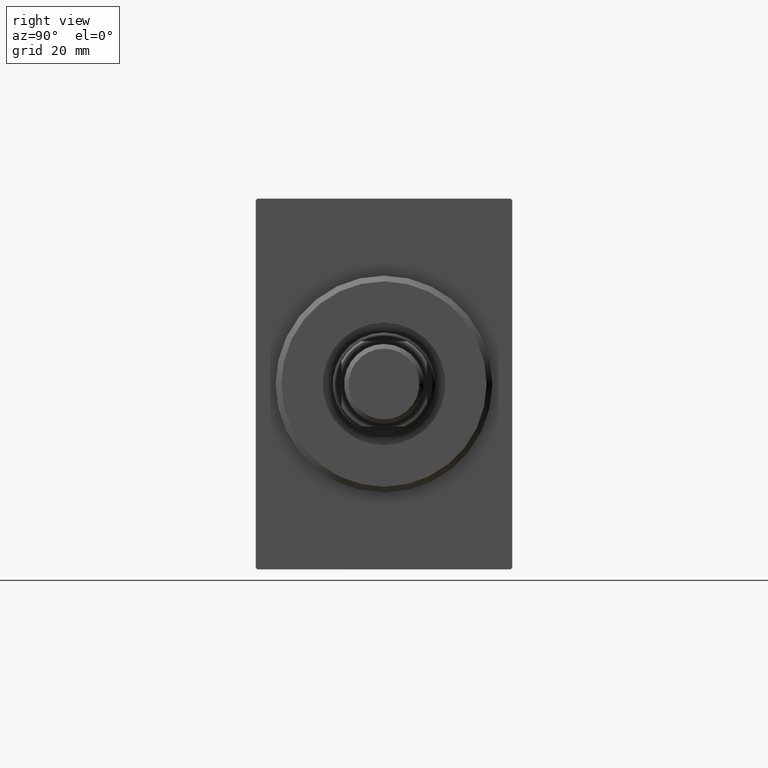
[diagram: clean part render]
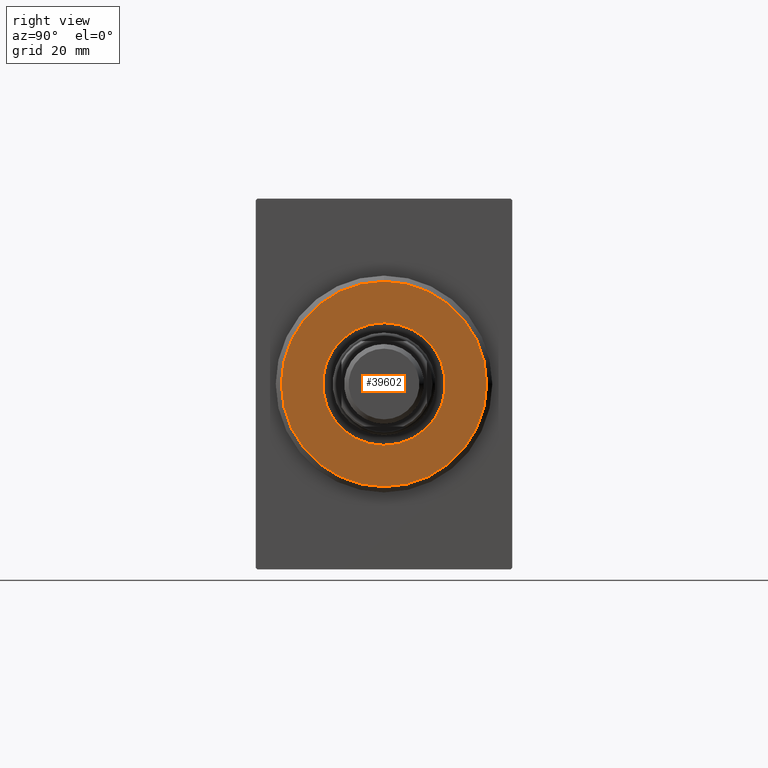
[diagram: same view with one face highlighted and labeled with its STEP entity id]
A machine part, right view. The second image highlights one B-rep face of the part: STEP entity #39602.
In plain terms, the highlighted planar face has unit normal (1, 0, 0).
Its self-contained STEP definition (entity closure, byte-faithful):
#637 = EDGE_LOOP ( 'NONE', ( #25200, #3688 ) ) ;
#1270 = VERTEX_POINT ( 'NONE', #33726 ) ;
#1948 = DIRECTION ( 'NONE',  ( 0.000000000000000000, 0.000000000000000000, -1.000000000000000000 ) ) ;
#2521 = VERTEX_POINT ( 'NONE', #29314 ) ;
#3688 = ORIENTED_EDGE ( 'NONE', *, *, #28441, .T. ) ;
#3699 = VERTEX_POINT ( 'NONE', #21090 ) ;
#4983 = DIRECTION ( 'NONE',  ( 1.000000000000000000, -0.000000000000000000, 0.000000000000000000 ) ) ;
#6179 = DIRECTION ( 'NONE',  ( 0.000000000000000000, 0.000000000000000000, -1.000000000000000000 ) ) ;
#7086 = CIRCLE ( 'NONE', #36295, 17.99999999999999645 ) ;
#7468 = VERTEX_POINT ( 'NONE', #41372 ) ;
#8039 = CIRCLE ( 'NONE', #32360, 17.99999999999999645 ) ;
#8244 = CARTESIAN_POINT ( 'NONE',  ( 3.000000000000000000, 0.000000000000000000, 0.000000000000000000 ) ) ;
#9717 = EDGE_CURVE ( 'NONE', #3699, #1270, #7086, .T. ) ;
#15706 = DIRECTION ( 'NONE',  ( -1.000000000000000000, 0.000000000000000000, -0.000000000000000000 ) ) ;
#16277 = CARTESIAN_POINT ( 'NONE',  ( 3.000000000000000000, 0.000000000000000000, 0.000000000000000000 ) ) ;
#16384 = DIRECTION ( 'NONE',  ( 1.000000000000000000, -0.000000000000000000, 0.000000000000000000 ) ) ;
#18386 = EDGE_CURVE ( 'NONE', #2521, #7468, #41963, .T. ) ;
#21090 = CARTESIAN_POINT ( 'NONE',  ( 3.000000000000000000, 0.000000000000000000, 17.99999999999999645 ) ) ;
#22230 = AXIS2_PLACEMENT_3D ( 'NONE', #26130, #15706, #39400 ) ;
#25200 = ORIENTED_EDGE ( 'NONE', *, *, #9717, .T. ) ;
#25673 = AXIS2_PLACEMENT_3D ( 'NONE', #16277, #29537, #38707 ) ;
#26130 = CARTESIAN_POINT ( 'NONE',  ( 3.000000000000000000, 0.000000000000000000, 0.000000000000000000 ) ) ;
#26193 = DIRECTION ( 'NONE',  ( -1.000000000000000000, 0.000000000000000000, -0.000000000000000000 ) ) ;
#26274 = FACE_OUTER_BOUND ( 'NONE', #637, .T. ) ;
#28045 = AXIS2_PLACEMENT_3D ( 'NONE', #32926, #26193, #6179 ) ;
#28441 = EDGE_CURVE ( 'NONE', #1270, #3699, #8039, .T. ) ;
#29183 = CIRCLE ( 'NONE', #22230, 10.75000000000000000 ) ;
#29314 = CARTESIAN_POINT ( 'NONE',  ( 3.000000000000000000, 1.316495309083404223E-15, -10.75000000000000000 ) ) ;
#29537 = DIRECTION ( 'NONE',  ( 1.000000000000000000, -0.000000000000000000, 0.000000000000000000 ) ) ;
#31991 = EDGE_LOOP ( 'NONE', ( #37715, #38187 ) ) ;
#32360 = AXIS2_PLACEMENT_3D ( 'NONE', #8244, #4983, #1948 ) ;
#32581 = FACE_BOUND ( 'NONE', #31991, .T. ) ;
#32926 = CARTESIAN_POINT ( 'NONE',  ( 3.000000000000000000, 0.000000000000000000, 0.000000000000000000 ) ) ;
#33332 = CARTESIAN_POINT ( 'NONE',  ( 3.000000000000000000, 0.000000000000000000, 0.000000000000000000 ) ) ;
#33726 = CARTESIAN_POINT ( 'NONE',  ( 3.000000000000000000, 2.265596578422603002E-15, -17.99999999999999645 ) ) ;
#36295 = AXIS2_PLACEMENT_3D ( 'NONE', #33332, #16384, #36812 ) ;
#36812 = DIRECTION ( 'NONE',  ( 0.000000000000000000, 0.000000000000000000, -1.000000000000000000 ) ) ;
#37715 = ORIENTED_EDGE ( 'NONE', *, *, #41168, .T. ) ;
#38187 = ORIENTED_EDGE ( 'NONE', *, *, #18386, .T. ) ;
#38707 = DIRECTION ( 'NONE',  ( 0.000000000000000000, 0.000000000000000000, -1.000000000000000000 ) ) ;
#39400 = DIRECTION ( 'NONE',  ( 0.000000000000000000, 0.000000000000000000, -1.000000000000000000 ) ) ;
#39602 = ADVANCED_FACE ( 'NONE', ( #26274, #32581 ), #42612, .T. ) ;
#41168 = EDGE_CURVE ( 'NONE', #7468, #2521, #29183, .T. ) ;
#41372 = CARTESIAN_POINT ( 'NONE',  ( 3.000000000000000000, 0.000000000000000000, 10.75000000000000000 ) ) ;
#41963 = CIRCLE ( 'NONE', #28045, 10.75000000000000000 ) ;
#42612 = PLANE ( 'NONE',  #25673 ) ;